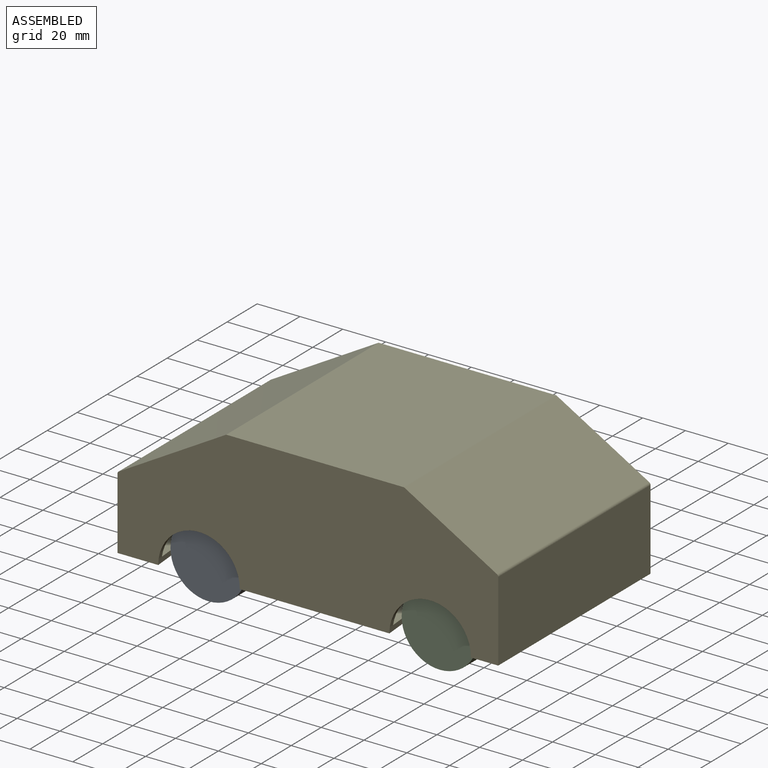
[diagram: assembled view]
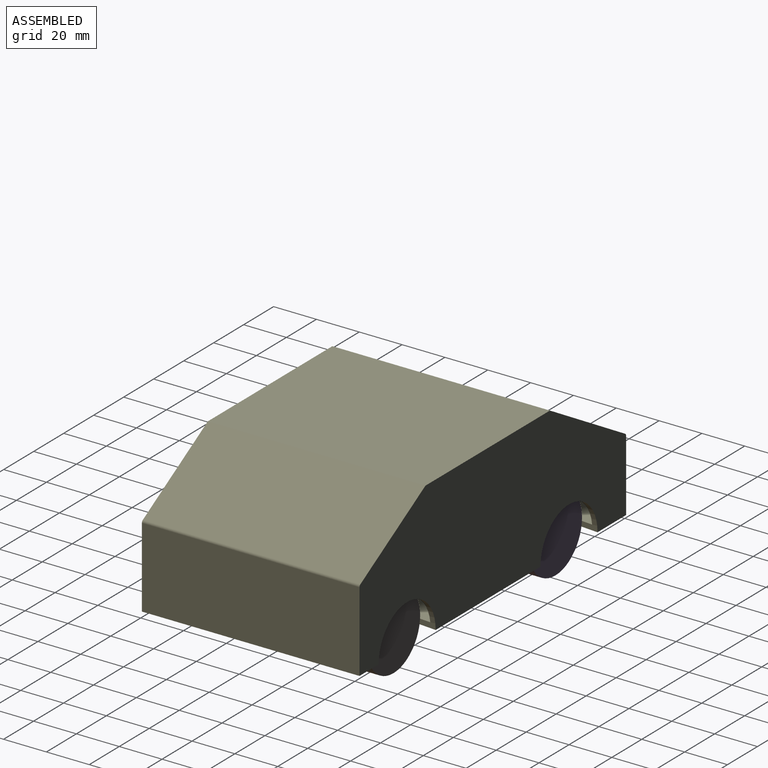
[diagram: assembled view, second angle]
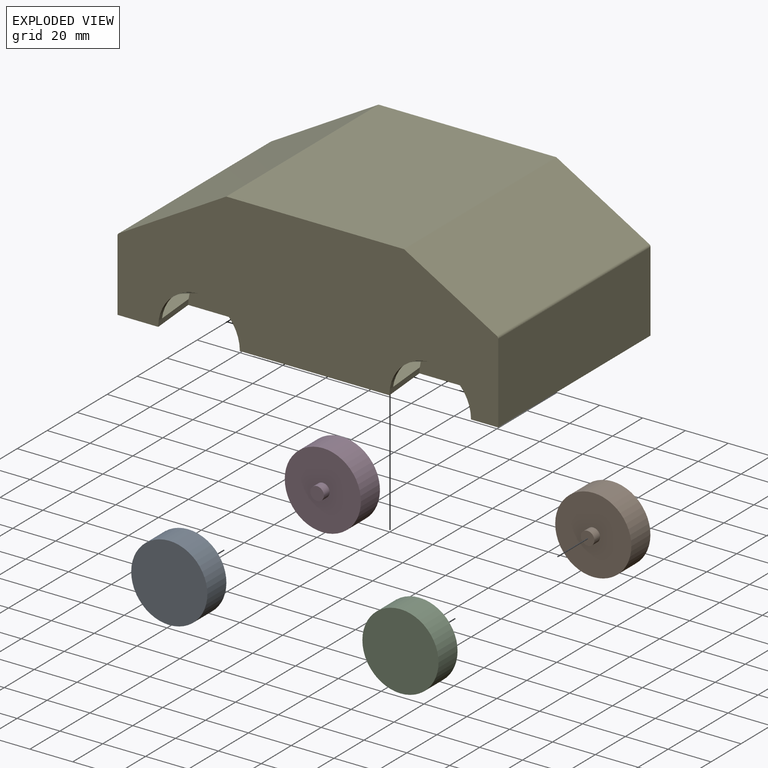
[diagram: exploded view]
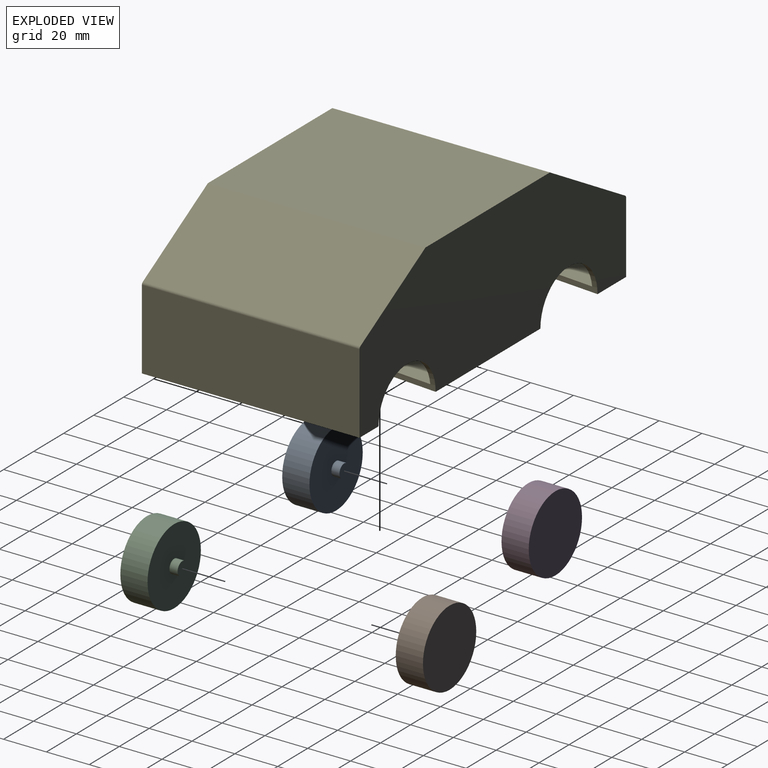
[diagram: exploded view, second angle]
ASSEMBLY  parts=5 mates=4
PART A: 5 faces, bbox 16.5x35.6x35.6 mm
  f0: cylinder r=3.17mm len=6.35mm, axis (-1,0,0), area 76mm2, adj f1,f4
  f1: plane 6.35x6.35mm, normal (-1,0,0), area 31.7mm2, adj f0
  f2: cylinder r=17.78mm len=35.56mm, axis (-1,0,0), area 1418.8mm2, adj f3,f4
  f3: plane 35.56x35.56mm, normal (1,0,0), area 993.1mm2, adj f2
  f4: plane 35.56x35.56mm, normal (-1,0,0), area 961.5mm2, adj f0,f2
PART B: same geometry as A
PART C: same geometry as A
PART D: same geometry as A
PART E: 34 faces, bbox 177.8x101.6x63.5 mm
  f0: plane 177.8x63.5mm, normal (0,1,0), area 8846.3mm2, adj f1,f2,f4,f5,f10,f12,f14,f15
  f1: plane 101.6x37.37mm, normal (1,0,0), area 3796.5mm2, adj f0,f3,f5,f32
  f2: plane 101.6x33.44mm, normal (-1,0,0), area 3397.2mm2, adj f0,f3,f5,f33
  f3: plane 177.8x63.5mm, normal (0,-1,0), area 8846.3mm2, adj f1,f2,f4,f5,f6,f8,f14,f15
  f4: plane 101.6x83.01mm, normal (0,0,1), area 8433.4mm2, adj f0,f3,f14,f15
  f5: plane 177.8x101.6mm, normal (0,0,-1), area 14397.7mm2, adj f0,f1,f2,f3,f6,f7,f8,f9
  f6: cone r=19.05mm half-angle=5deg, axis (0,1,0), area 257.5mm2, adj f3,f5,f7,f19,f21
  f7: plane 42.1x21.05mm, normal (0,-1,0), area 696mm2, adj f5,f6,f22
  f8: cone r=19.05mm half-angle=5deg, axis (0,1,0), area 257.5mm2, adj f3,f5,f9,f19,f21
  f9: plane 42.1x21.05mm, normal (0,-1,0), area 696mm2, adj f5,f8,f24
  f10: cone r=19.05mm half-angle=5deg, axis (0,-1,0), area 257.5mm2, adj f0,f5,f11,f16,f21
  f11: plane 42.1x21.05mm, normal (0,1,0), area 696mm2, adj f5,f10,f26
  f12: cone r=19.05mm half-angle=5deg, axis (0,-1,0), area 257.5mm2, adj f0,f5,f13,f16,f21
  f13: plane 42.1x21.05mm, normal (0,1,0), area 696mm2, adj f5,f12,f28
  f14: plane 101.6x50.17mm, normal (-0.5,0,0.87), area 5885.2mm2, adj f0,f3,f4,f33
  f15: plane 101.6x43.36mm, normal (0.5,0,0.87), area 5086.8mm2, adj f0,f3,f4,f32
  f16: plane 172.72x58.42mm, normal (0,-1,0), area 7914.8mm2, adj f10,f12,f17,f18,f20,f21,f30,f31
  f17: plane 96.52x34.09mm, normal (-1,0,0), area 3290.7mm2, adj f16,f19,f21,f31
  f18: plane 96.52x30.16mm, normal (1,0,0), area 2911.4mm2, adj f16,f19,f21,f30
  f19: plane 172.72x58.42mm, normal (0,1,0), area 7914.8mm2, adj f6,f8,f17,f18,f20,f21,f30,f31
  f20: plane 96.52x81.64mm, normal (0,0,-1), area 7880.3mm2, adj f16,f19,f30,f31
  f21: plane 172.73x96.53mm, normal (0,0,1), area 12992.8mm2, adj f6,f8,f10,f12,f16,f17,f18,f19
  f22: cone r=19.05mm half-angle=5deg, axis (0,1,0), area 156.5mm2, adj f7,f21,f23
  f23: plane 42.24x18.73mm, normal (0,1,0), area 603mm2, adj f21,f22
  f24: cone r=19.05mm half-angle=5deg, axis (0,1,0), area 156.5mm2, adj f9,f21,f25
  f25: plane 42.24x18.73mm, normal (0,1,0), area 603mm2, adj f21,f24
  f26: cone r=19.05mm half-angle=5deg, axis (0,-1,0), area 156.5mm2, adj f11,f21,f27
  f27: plane 42.24x18.73mm, normal (0,-1,0), area 603mm2, adj f21,f26
  f28: cone r=19.05mm half-angle=5deg, axis (0,-1,0), area 156.5mm2, adj f13,f21,f29
  f29: plane 42.24x18.73mm, normal (0,-1,0), area 603mm2, adj f21,f28
  f30: plane 96.52x48.94mm, normal (0.5,0,-0.87), area 5454.5mm2, adj f16,f18,f19,f20
  f31: plane 96.52x42.13mm, normal (-0.5,0,-0.87), area 4696mm2, adj f16,f17,f19,f20
  f32: cylinder r=1.27mm len=101.6mm, axis (0,1,0), area 135.1mm2, adj f0,f1,f3,f15
  f33: cylinder r=1.27mm len=101.6mm, axis (0,-1,0), area 135.1mm2, adj f0,f2,f3,f14
PLACE A rot(axis=(0,0,-1),90deg) t=(-36.72,39.54,99.01)mm
PLACE B rot(axis=(0,0,1),90deg) t=(71.23,95.42,99.01)mm
PLACE C rot(axis=(0,0,-1),90deg) t=(71.23,39.54,99.01)mm
PLACE D rot(axis=(0,0,1),90deg) t=(-36.72,95.42,99.01)mm
PLACE E t=(14.08,67.48,93.89)mm
MATE fastened B.f0 <-> E.f13  axis (0,-1,0) through (71.23,95.42,99.01)mm
MATE fastened D.f0 <-> E.f11  axis (0,-1,0) through (-36.72,95.42,99.01)mm
MATE fastened A.f0 <-> E.f9  axis (0,1,0) through (-36.72,39.54,99.01)mm
MATE fastened C.f0 <-> E.f7  axis (0,1,0) through (71.23,39.54,99.01)mm
